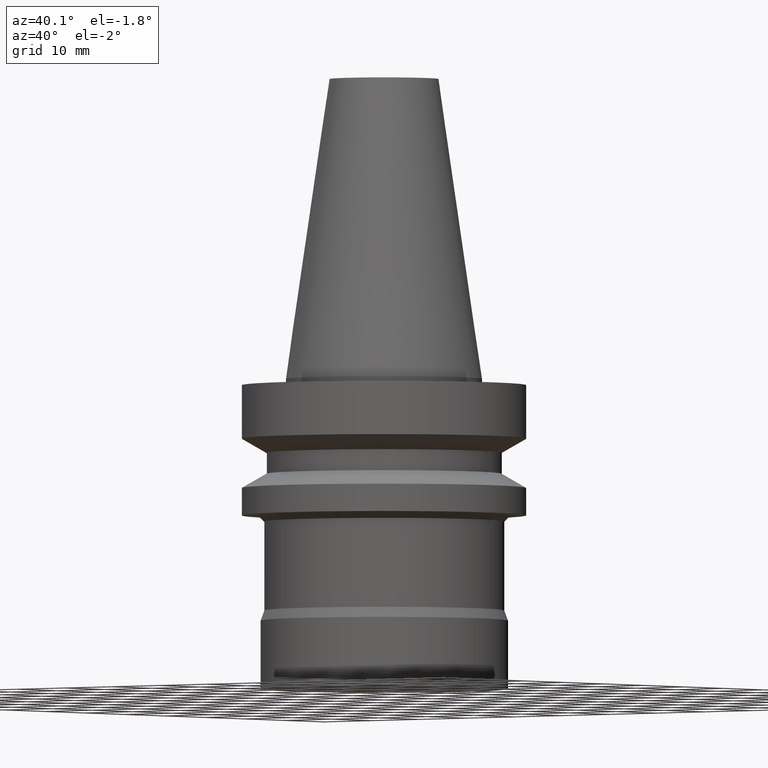
[diagram: clean part render]
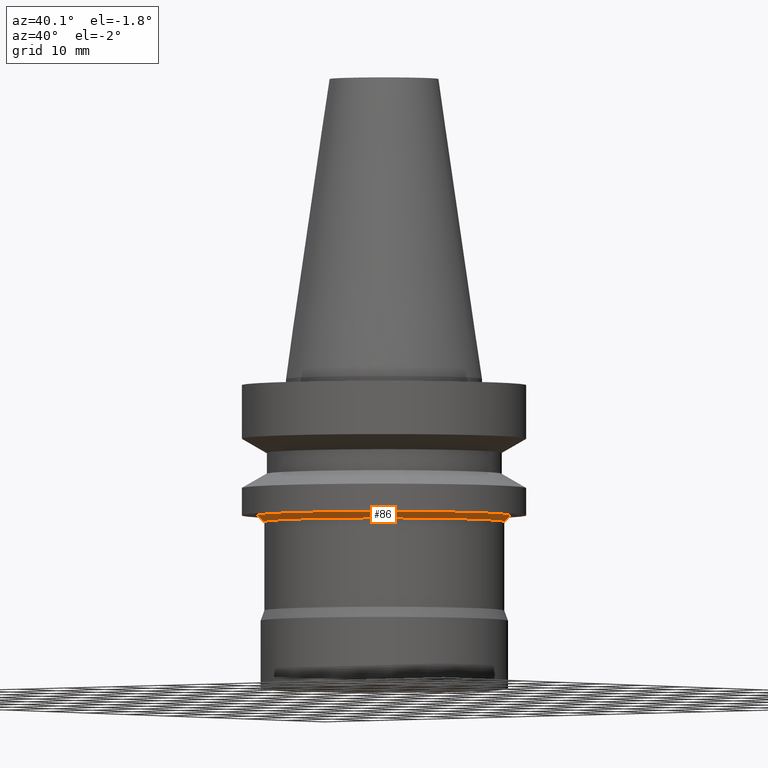
[diagram: same view with one face highlighted and labeled with its STEP entity id]
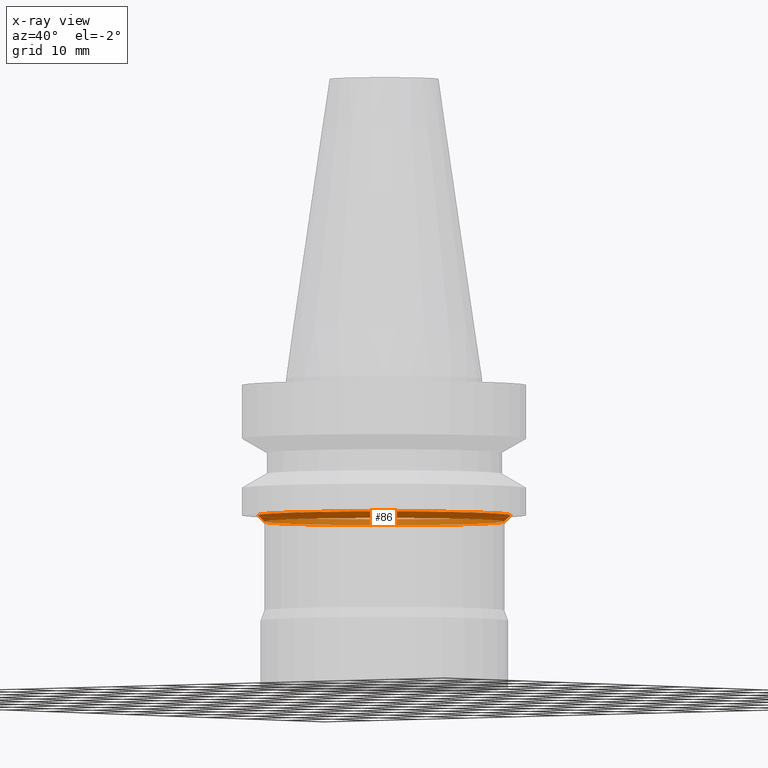
[diagram: x-ray of the same camera — body ghosted, the highlighted face saturated]
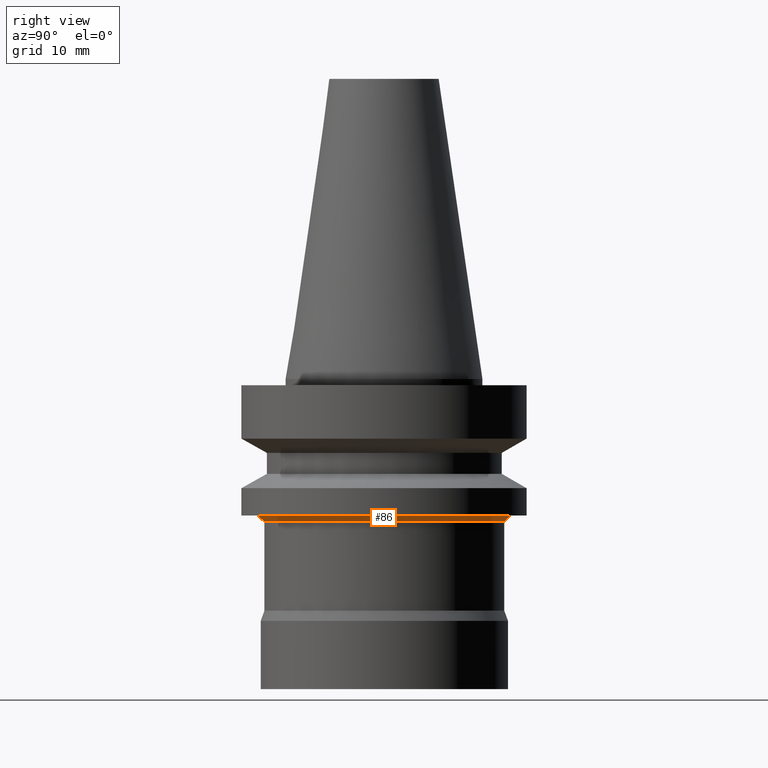
[diagram: same view with one face highlighted and labeled with its STEP entity id]
A machine part, auxiliary view. The second image highlights one B-rep face of the part: STEP entity #86.
The next image is the same camera in x-ray: the body ghosted, the highlighted face saturated — about 44% of this face is hidden behind the body in this view.
A second angle (right view) of the same face is appended — the face is thin or edge-on in the first view.
In plain terms, the highlighted conical surface has half-angle 45 deg.
Its self-contained STEP definition (entity closure, byte-faithful):
#86=ADVANCED_FACE('',(#122,#123),#124,.T.);
#122=FACE_BOUND('',#165,.T.);
#123=FACE_BOUND('',#166,.T.);
#124=CONICAL_SURFACE('',#167,19.9,0.785398163397448);
#165=EDGE_LOOP('',(#230));
#166=EDGE_LOOP('',(#231));
#167=AXIS2_PLACEMENT_3D('',#232,#233,#234);
#230=ORIENTED_EDGE('',*,*,#261,.F.);
#231=ORIENTED_EDGE('',*,*,#260,.T.);
#232=CARTESIAN_POINT('',(1.37772764904077E-015,2.75545529808154E-015,-22.5));
#233=DIRECTION('',(-6.12323399573677E-017,-1.22464679914735E-016,1.0));
#234=DIRECTION('',(-1.23259516440783E-032,1.0,1.22464679914735E-016));
#260=EDGE_CURVE('',#284,#284,#285,.T.);
#261=EDGE_CURVE('',#286,#286,#287,.T.);
#284=VERTEX_POINT('',#312);
#285=CIRCLE('',#313,20.4);
#286=VERTEX_POINT('',#314);
#287=CIRCLE('',#315,19.4);
#312=CARTESIAN_POINT('',(1.34711147906209E-015,20.4,-22.0));
#313=AXIS2_PLACEMENT_3D('',#350,#351,#352);
#314=CARTESIAN_POINT('',(1.40834381901946E-015,19.4,-23.0));
#315=AXIS2_PLACEMENT_3D('',#353,#354,#355);
#350=CARTESIAN_POINT('',(1.34711147906209E-015,2.69422295812418E-015,-22.0));
#351=DIRECTION('',(6.12323399573677E-017,1.22464679914735E-016,-1.0));
#352=DIRECTION('',(-1.23259516440783E-032,1.0,1.22464679914735E-016));
#353=CARTESIAN_POINT('',(1.40834381901946E-015,2.81668763803891E-015,-23.0));
#354=DIRECTION('',(6.12323399573677E-017,1.22464679914735E-016,-1.0));
#355=DIRECTION('',(-1.23259516440783E-032,1.0,1.22464679914735E-016));